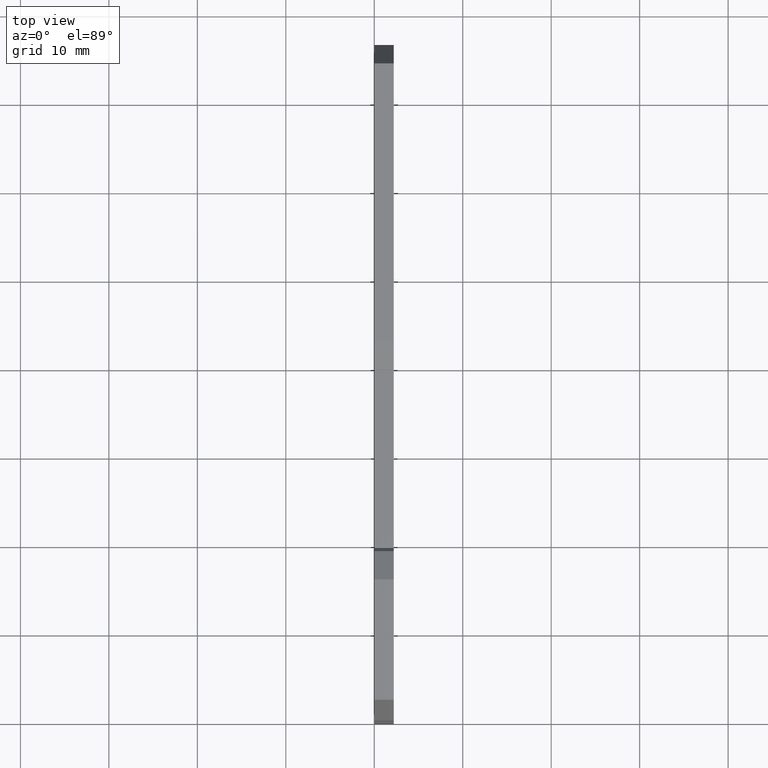
[diagram: clean part render]
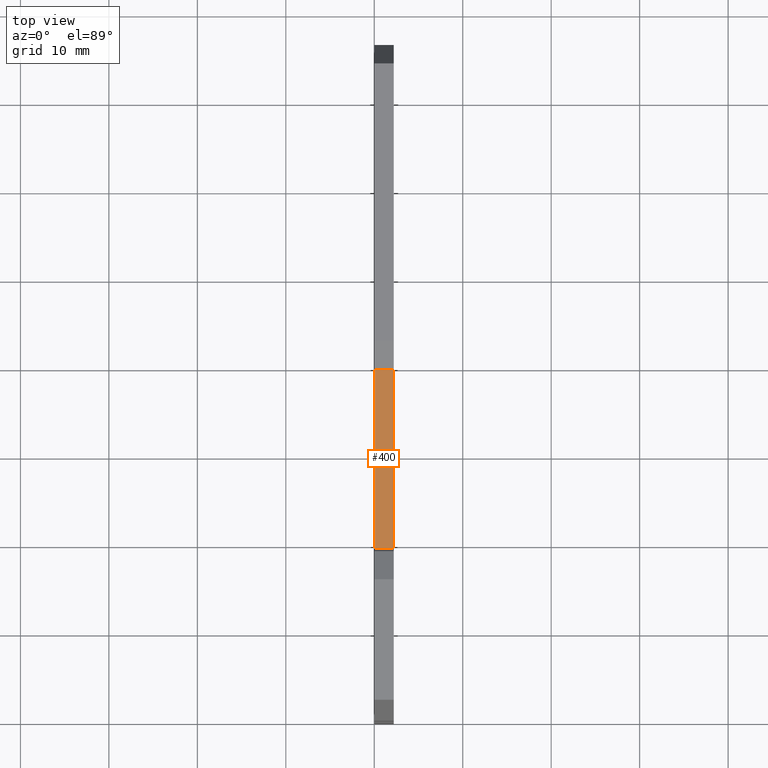
[diagram: same view with one face highlighted and labeled with its STEP entity id]
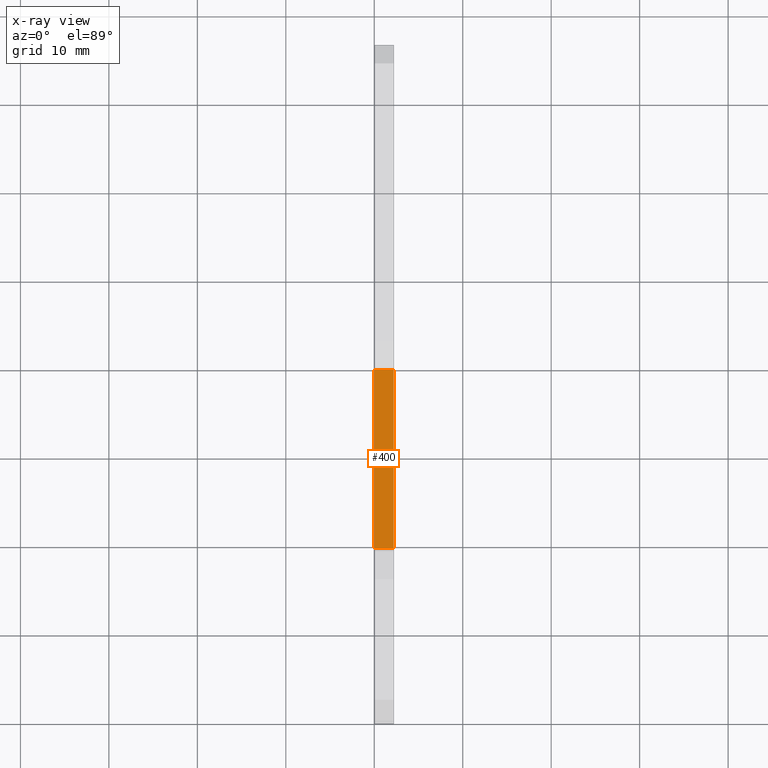
[diagram: x-ray of the same camera — body ghosted, the highlighted face saturated]
A machine part, top view. The second image highlights one B-rep face of the part: STEP entity #400.
The next image is the same camera in x-ray: the body ghosted, the highlighted face saturated — about 0% of this face is hidden behind the body in this view.
In plain terms, the highlighted planar face has unit normal (0, 0, 1).
Its self-contained STEP definition (entity closure, byte-faithful):
#10=CARTESIAN_POINT('',(28.1611811075905,-9.15000000000794,
0.300000000000008));
#20=DIRECTION('',(7.76028776021509E-29,1.,4.55546761142704E-15));
#30=DIRECTION('',(-1.,0.,1.70351068697075E-14));
#40=AXIS2_PLACEMENT_3D('',#10,#20,#30);
#50=PLANE('',#40);
#60=CARTESIAN_POINT('',(28.1611811075905,-9.15000000000794,
-2.8421709430404E-14));
#70=DIRECTION('',(1.30896257623741E-14,-4.55546761142704E-15,1.));
#80=VECTOR('',#70,1.);
#90=LINE('',#60,#80);
#100=CARTESIAN_POINT('',(28.1611811075905,-9.15000000000793,
-3.68594044175552E-14));
#110=VERTEX_POINT('',#100);
#120=CARTESIAN_POINT('',(28.1611811075906,-9.15000000000795,
2.19999999999844));
#130=VERTEX_POINT('',#120);
#140=EDGE_CURVE('',#110,#130,#90,.T.);
#150=ORIENTED_EDGE('',*,*,#140,.T.);
#160=CARTESIAN_POINT('',(47.920285,-9.15000000000794,
-3.68594044175552E-14));
#170=DIRECTION('',(-1.,0.,0.));
#180=VECTOR('',#170,1.);
#190=LINE('',#160,#180);
#200=CARTESIAN_POINT('',(48.2784150526289,-9.15000000000794,
-3.68594044175552E-14));
#210=VERTEX_POINT('',#200);
#220=EDGE_CURVE('',#210,#110,#190,.T.);
#230=ORIENTED_EDGE('',*,*,#220,.T.);
#240=CARTESIAN_POINT('',(48.2784150526289,-9.15000000000794,
-2.8421709430404E-14));
#250=DIRECTION('',(-1.24455757664388E-14,4.55546761142704E-15,-1.));
#260=VECTOR('',#250,1.);
#270=LINE('',#240,#260);
#280=CARTESIAN_POINT('',(48.278415052629,-9.15000000000795,
2.19999999999844));
#290=VERTEX_POINT('',#280);
#300=EDGE_CURVE('',#290,#210,#270,.T.);
#310=ORIENTED_EDGE('',*,*,#300,.T.);
#320=CARTESIAN_POINT('',(47.920285,-9.15000000000794,2.19999999999844));
#330=DIRECTION('',(-1.,0.,0.));
#340=VECTOR('',#330,1.);
#350=LINE('',#320,#340);
#360=EDGE_CURVE('',#290,#130,#350,.T.);
#370=ORIENTED_EDGE('',*,*,#360,.F.);
#380=EDGE_LOOP('',(#370,#310,#230,#150));
#390=FACE_OUTER_BOUND('',#380,.T.);
#400=ADVANCED_FACE('',(#390),#50,.T.);